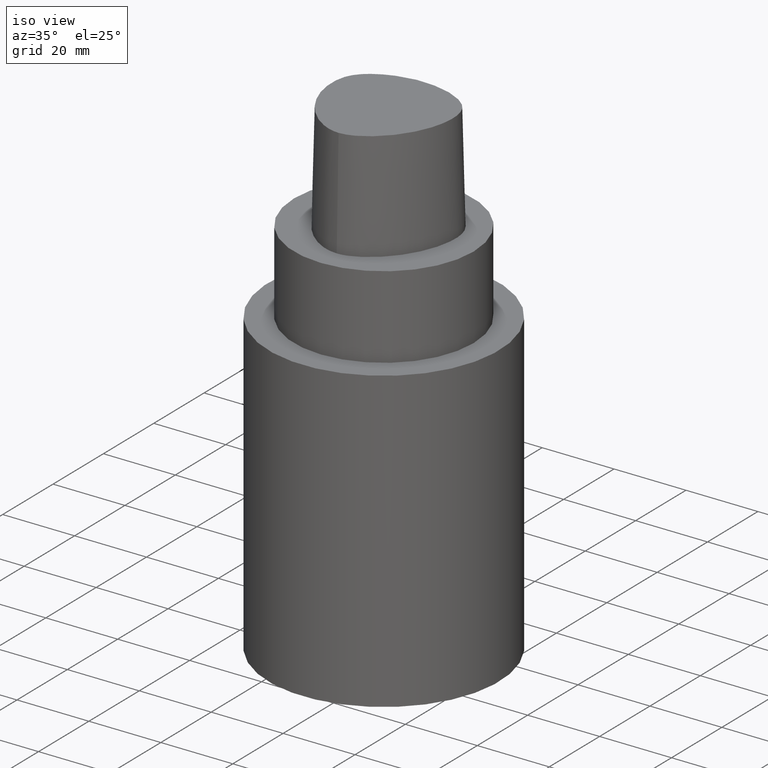
[diagram: clean part render]
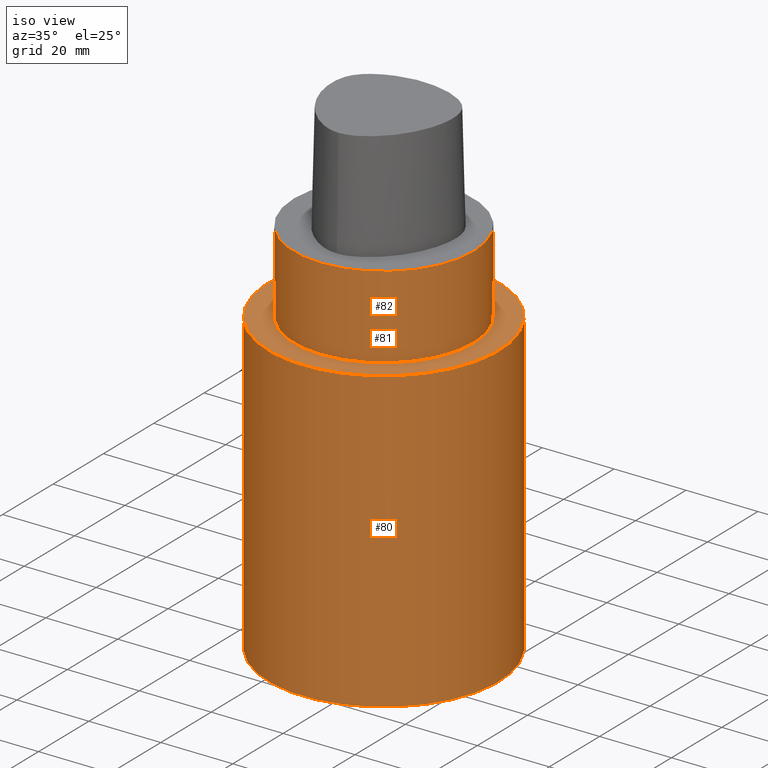
[diagram: same view with one multi-face feature highlighted, each face labeled with its STEP entity id]
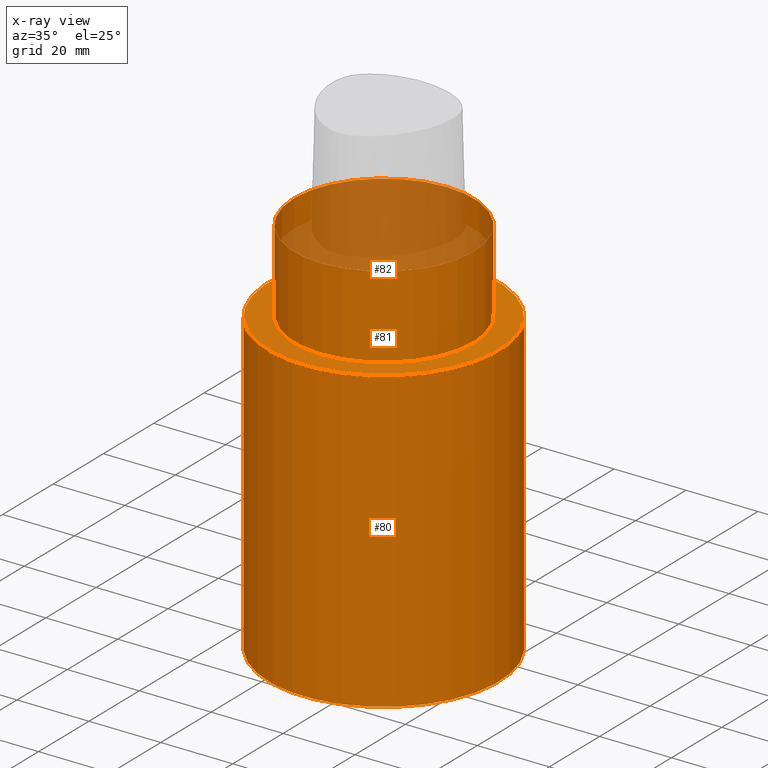
[diagram: x-ray of the same camera — body ghosted, the whole feature saturated]
A machine part, iso view. The highlighted faces form ONE feature: a stepped (counterbored) hole: 2 coaxial cylindrical walls of radii 24.99 -> 32 mm joined by 1 annular planar shoulder face(s). The faces share edges in the B-rep.
The next image is the same camera in x-ray: the body ghosted and the whole hole feature saturated, so the bore chain is visible through the body.
Their STEP definitions:
[1] entity #80 (Cylinder):
#80=ADVANCED_FACE('',(#96,#97),#98,.T.);
#96=FACE_BOUND('',#500,.T.);
#97=FACE_BOUND('',#501,.T.);
#98=CYLINDRICAL_SURFACE('',#502,32.0);
#500=EDGE_LOOP('',(#531));
#501=EDGE_LOOP('',(#532));
#502=AXIS2_PLACEMENT_3D('',#533,#534,#535);
#531=ORIENTED_EDGE('',*,*,#552,.F.);
#532=ORIENTED_EDGE('',*,*,#551,.T.);
#533=CARTESIAN_POINT('',(3.95710051477687E-015,7.91420102955374E-015,-64.6243556514737));
#534=DIRECTION('',(6.12323399573677E-017,1.22464679914735E-016,-1.0));
#535=DIRECTION('',(-1.23259516440783E-032,1.0,1.22464679914735E-016));
#551=EDGE_CURVE('',#563,#563,#564,.T.);
#552=EDGE_CURVE('',#565,#565,#566,.T.);
#563=VERTEX_POINT('',#724);
#564=CIRCLE('',#725,32.0);
#565=VERTEX_POINT('',#726);
#566=CIRCLE('',#727,32.0);
#724=CARTESIAN_POINT('',(6.50585721053429E-015,32.0,-106.248711302947));
#725=AXIS2_PLACEMENT_3D('',#736,#737,#738);
#726=CARTESIAN_POINT('',(1.40834381901946E-015,32.0,-23.0));
#727=AXIS2_PLACEMENT_3D('',#739,#740,#741);
#736=CARTESIAN_POINT('',(6.50585721053429E-015,1.30117144210686E-014,-106.248711302947));
#737=DIRECTION('',(-6.12323399573677E-017,-1.22464679914735E-016,1.0));
#738=DIRECTION('',(-1.23259516440783E-032,1.0,1.22464679914735E-016));
#739=CARTESIAN_POINT('',(1.40834381901946E-015,2.81668763803891E-015,-23.0));
#740=DIRECTION('',(-6.12323399573677E-017,-1.22464679914735E-016,1.0));
#741=DIRECTION('',(-1.23259516440783E-032,1.0,1.22464679914735E-016));
[2] entity #82 (Cylinder):
#82=ADVANCED_FACE('',(#102,#103),#104,.T.);
#102=FACE_BOUND('',#506,.T.);
#103=FACE_BOUND('',#507,.T.);
#104=CYLINDRICAL_SURFACE('',#508,24.99);
#506=EDGE_LOOP('',(#541));
#507=EDGE_LOOP('',(#542));
#508=AXIS2_PLACEMENT_3D('',#543,#544,#545);
#541=ORIENTED_EDGE('',*,*,#549,.F.);
#542=ORIENTED_EDGE('',*,*,#553,.T.);
#543=CARTESIAN_POINT('',(7.04171909509728E-016,1.40834381901946E-015,-11.5));
#544=DIRECTION('',(6.12323399573677E-017,1.22464679914735E-016,-1.0));
#545=DIRECTION('',(-1.23259516440783E-032,1.0,1.22464679914735E-016));
#549=EDGE_CURVE('',#559,#559,#560,.T.);
#553=EDGE_CURVE('',#567,#567,#568,.T.);
#559=VERTEX_POINT('',#720);
#560=CIRCLE('',#721,24.99);
#567=VERTEX_POINT('',#728);
#568=CIRCLE('',#729,24.99);
#720=CARTESIAN_POINT('',(-3.08025531585517E-031,24.99,3.06039235106923E-015));
#721=AXIS2_PLACEMENT_3D('',#730,#731,#732);
#728=CARTESIAN_POINT('',(1.40834381901946E-015,24.99,-23.0));
#729=AXIS2_PLACEMENT_3D('',#742,#743,#744);
#730=CARTESIAN_POINT('',(0.0,0.0,0.0));
#731=DIRECTION('',(-6.12323399573677E-017,-1.22464679914735E-016,1.0));
#732=DIRECTION('',(-1.23259516440783E-032,1.0,1.22464679914735E-016));
#742=CARTESIAN_POINT('',(1.40834381901946E-015,2.81668763803891E-015,-23.0));
#743=DIRECTION('',(-6.12323399573677E-017,-1.22464679914735E-016,1.0));
#744=DIRECTION('',(-1.23259516440783E-032,1.0,1.22464679914735E-016));
[3] entity #81 (Plane):
#81=ADVANCED_FACE('',(#99,#100),#101,.T.);
#99=FACE_BOUND('',#503,.T.);
#100=FACE_OUTER_BOUND('',#504,.T.);
#101=PLANE('',#505);
#503=EDGE_LOOP('',(#536));
#504=EDGE_LOOP('',(#537));
#505=AXIS2_PLACEMENT_3D('',#538,#539,#540);
#536=ORIENTED_EDGE('',*,*,#553,.F.);
#537=ORIENTED_EDGE('',*,*,#552,.T.);
#538=CARTESIAN_POINT('',(1.40834381901946E-015,28.495,-23.0));
#539=DIRECTION('',(-6.12323399573677E-017,-1.22464679914735E-016,1.0));
#540=DIRECTION('',(-1.23259516440783E-032,1.0,1.22464679914735E-016));
#552=EDGE_CURVE('',#565,#565,#566,.T.);
#553=EDGE_CURVE('',#567,#567,#568,.T.);
#565=VERTEX_POINT('',#726);
#566=CIRCLE('',#727,32.0);
#567=VERTEX_POINT('',#728);
#568=CIRCLE('',#729,24.99);
#726=CARTESIAN_POINT('',(1.40834381901946E-015,32.0,-23.0));
#727=AXIS2_PLACEMENT_3D('',#739,#740,#741);
#728=CARTESIAN_POINT('',(1.40834381901946E-015,24.99,-23.0));
#729=AXIS2_PLACEMENT_3D('',#742,#743,#744);
#739=CARTESIAN_POINT('',(1.40834381901946E-015,2.81668763803891E-015,-23.0));
#740=DIRECTION('',(-6.12323399573677E-017,-1.22464679914735E-016,1.0));
#741=DIRECTION('',(-1.23259516440783E-032,1.0,1.22464679914735E-016));
#742=CARTESIAN_POINT('',(1.40834381901946E-015,2.81668763803891E-015,-23.0));
#743=DIRECTION('',(-6.12323399573677E-017,-1.22464679914735E-016,1.0));
#744=DIRECTION('',(-1.23259516440783E-032,1.0,1.22464679914735E-016));